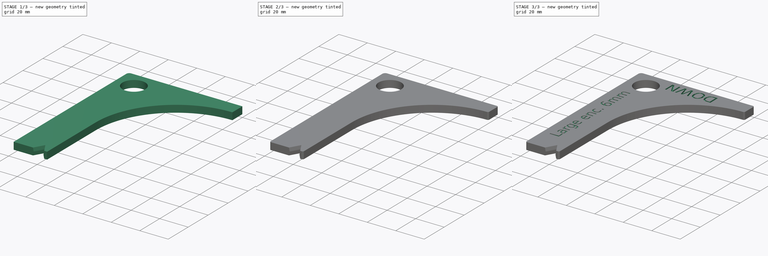
[diagram: build sequence overview — one tinted view per stage of 3, left to right]
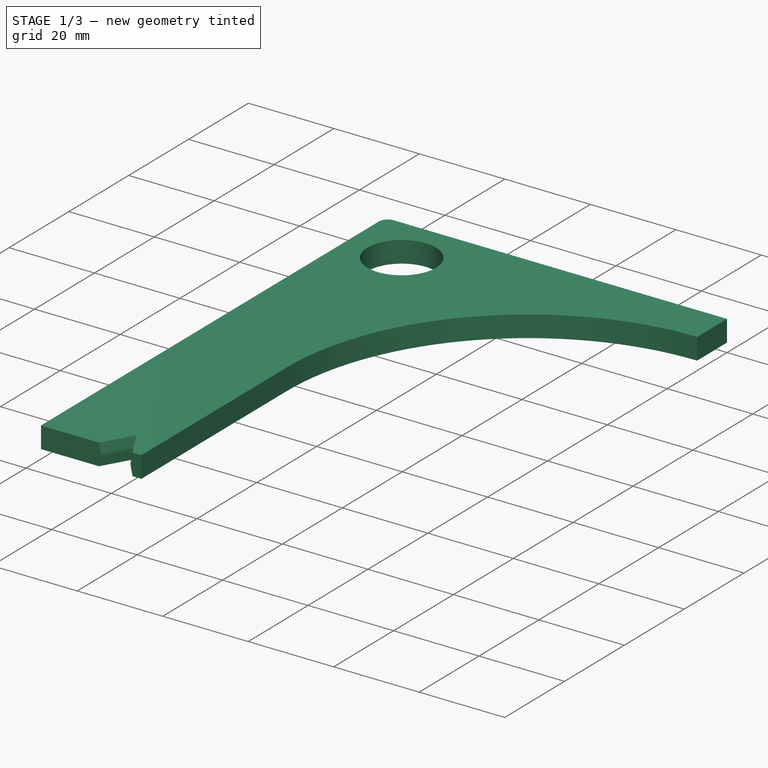
[diagram: stage 1 of 3 — iso view after this stage's code; geometry added in this stage tinted green]
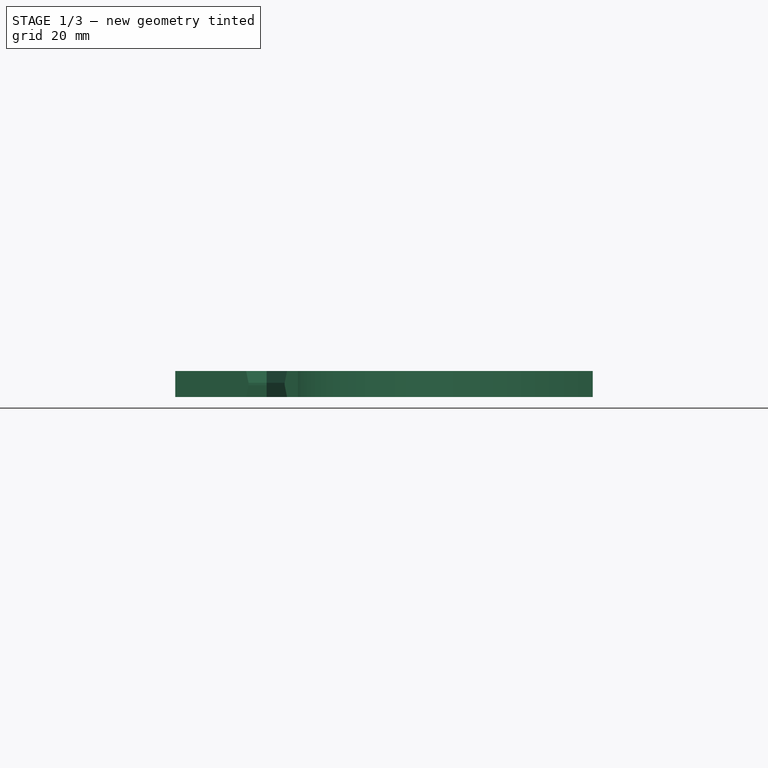
[diagram: stage 1 of 3 — front view after this stage's code; geometry added in this stage tinted green]
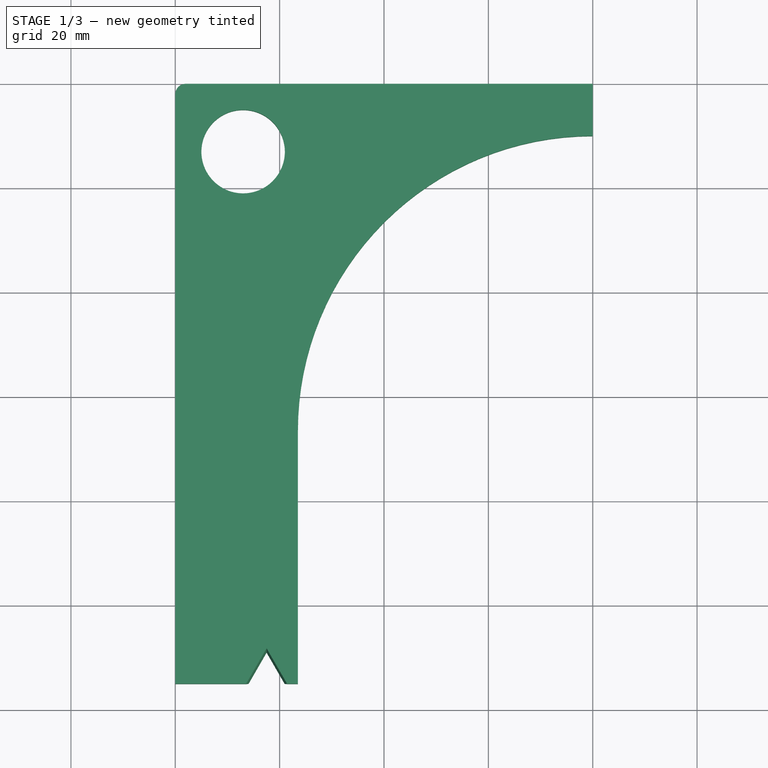
[diagram: stage 1 of 3 — top view after this stage's code; geometry added in this stage tinted green]
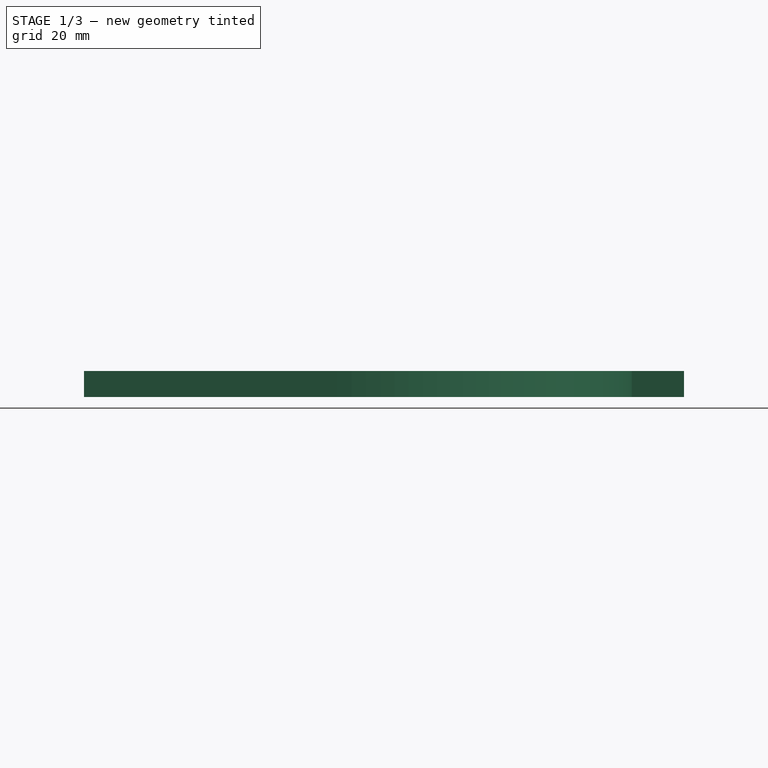
[diagram: stage 1 of 3 — right view after this stage's code; geometry added in this stage tinted green]
FCSTD DOCUMENT  (FreeCAD 0.20R29410 (Git))
Label: Large enclosure, 6mm DIN holes for 325mm slotted DIN rail
License: All rights reserved
LicenseURL: http://en.wikipedia.org/wiki/All_rights_reserved
objects: Part::Part2DObjectPython×2, PartDesign::Pocket×2, Sketcher::SketchObject×1, PartDesign::Pad×1, PartDesign::Chamfer×1, PartDesign::Fillet×1, PartDesign::Body×1
note: 14 computed .brp shape members not serialized (recipe doc carries the construction recipe); baked Part::Feature solids carry a one-line shape summary decoded from their .brp

FEATURE [Sketcher::SketchObject] Sketch
  FullyConstrained = true
  MapMode = 5
  Support = -> [XY_Plane]
  sketch-geometry (11):
    g0: LineSegment StartX=2 StartY=0 StartZ=0 EndX=80 EndY=0 EndZ=0
    g1: LineSegment StartX=2.7e-15 StartY=-115 StartZ=0 EndX=2.7e-15 EndY=-2 EndZ=0
    g2: ArcOfCircle CenterX=2 CenterY=-2 CenterZ=0 NormalX=0 NormalY=0 NormalZ=1 AngleXU=0 Radius=2 StartAngle=1.5708 EndAngle=3.14159
    g3: LineSegment StartX=2.7e-15 StartY=-115 StartZ=0 EndX=14.0359 EndY=-115 EndZ=0
    g4: LineSegment StartX=14.0359 StartY=-115 StartZ=0 EndX=17.5 EndY=-109 EndZ=0
    g5: LineSegment StartX=17.5 StartY=-109 StartZ=0 EndX=20.9641 EndY=-115 EndZ=0
    g6: LineSegment StartX=20.9641 StartY=-115 StartZ=0 EndX=23.5 EndY=-115 EndZ=0
    g7: LineSegment StartX=80 StartY=0 StartZ=0 EndX=80 EndY=-10 EndZ=0
    g8: LineSegment StartX=23.5 StartY=-115 StartZ=0 EndX=23.5 EndY=-66.5 EndZ=0
    g9: ArcOfCircle CenterX=80 CenterY=-66.5 CenterZ=0 NormalX=0 NormalY=0 NormalZ=1 AngleXU=0 Radius=56.5 StartAngle=1.5708 EndAngle=3.14159
    g10: Circle CenterX=13 CenterY=-13 CenterZ=0 NormalX=0 NormalY=0 NormalZ=1 AngleXU=0 Radius=8
  constraints (33):
    c: Horizontal(g0)
    c: Vertical(g1)
    c: Tangent(g0,g2) = 1.5708
    c: Tangent(g1,g2) = 1.5708
    c: Horizontal(g0,g-1)
    c: Vertical(g-1,g1)
    c: DistanceY(g2,g0) = 2
    c: Coincident(g1,g3)
    c: Horizontal(g3)
    c: Coincident(g3,g4)
    c: Coincident(g4,g5)
    c: Coincident(g5,g6)
    c: Horizontal(g6)
    c: DistanceY(g3,g4) = 6
    c: Horizontal(g3,g5)
    c: Angle(g4,g5) = 1.0472
    c: Equal(g4,g5)
    c: DistanceY(g4,g0) = 109
    c: DistanceX(g1,g4) = 17.5
    c: DistanceX(g1,g0) = 80
    c: Coincident(g7,g0)
    c: Distance(g7) = 10
    c: DistanceX(g4,g6) = 6
    c: Vertical(g7)
    c: Coincident(g8,g6)
    c: Vertical(g8)
    c: Coincident(g9,g8)
    c: Coincident(g9,g7)
    c: Vertical(g9,g7)
    c: Horizontal(g8,g9)
    c: Radius(g10) = 8
    c: DistanceX(g-1,g10) = 13
    c: DistanceY(g10,g-1) = 13
FEATURE [PartDesign::Pad] Pad
  Direction = (0,0,1)
  Length = 5
  Length2 = 100
  Profile = -> Sketch
  Type = 0
FEATURE [Part::Part2DObjectPython] ShapeString  label="Large enc. 6mm"  # Draft 2D object (typed FeaturePython)
  FontFile = <path>
  Placement = pos=(11.5,-99,5) rot=(0,0,1;1.5708rad)
  Size = 7
  String = Large enc. 6mm
  Tracking = 0
FEATURE [PartDesign::Chamfer] Chamfer
  Angle = 80
  Base = -> Pad [Edge28,Edge25,Edge24,Edge27]
  BaseFeature = -> Pad
  ChamferType = 2
  FlipDirection = true
  Size = 0.4
  Size2 = 1
  SupportTransform = false
  UseAllEdges = false
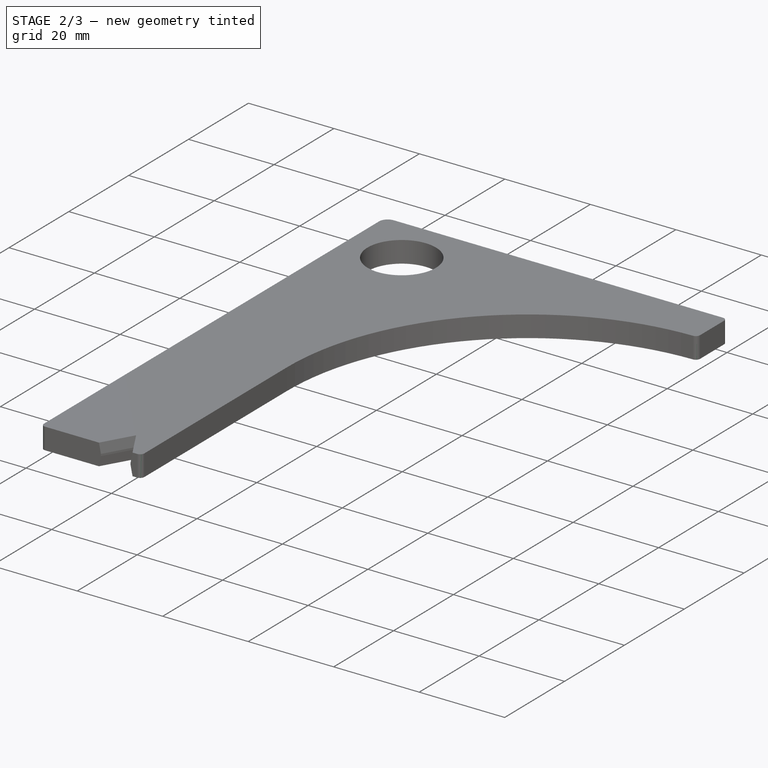
[diagram: stage 2 of 3 — iso view after this stage's code; geometry added in this stage tinted green]
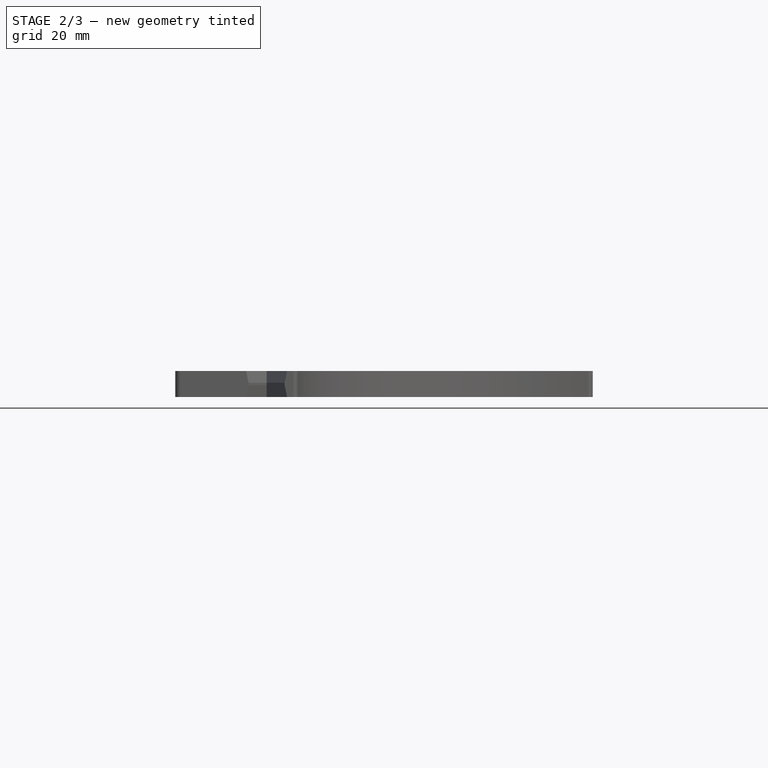
[diagram: stage 2 of 3 — front view after this stage's code; geometry added in this stage tinted green]
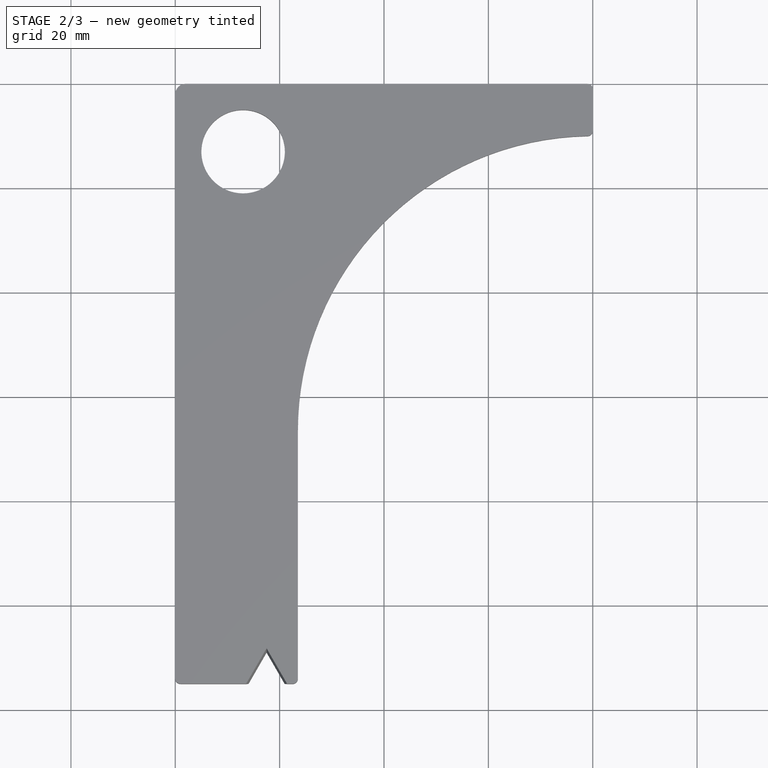
[diagram: stage 2 of 3 — top view after this stage's code; geometry added in this stage tinted green]
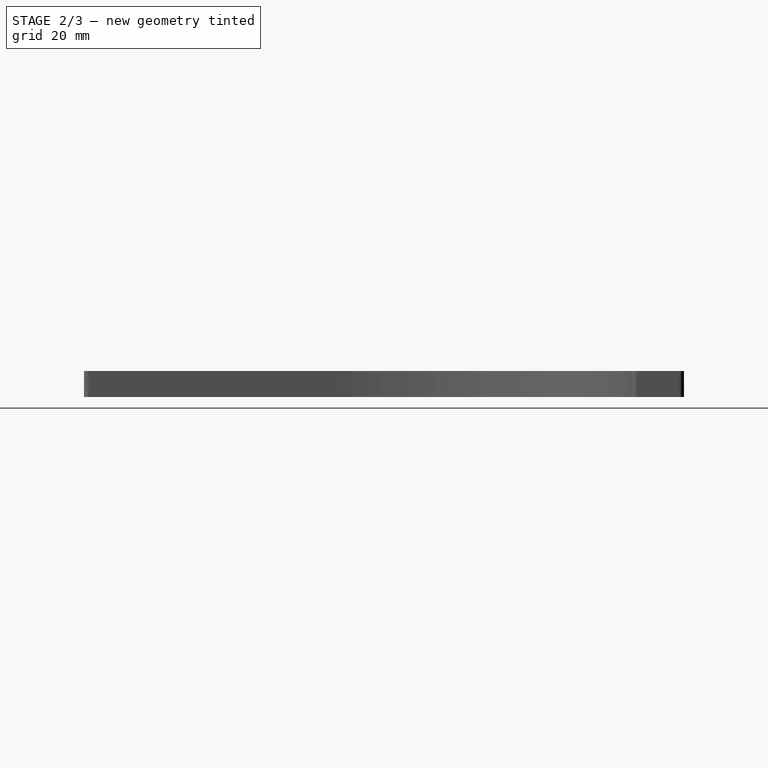
[diagram: stage 2 of 3 — right view after this stage's code; geometry added in this stage tinted green]
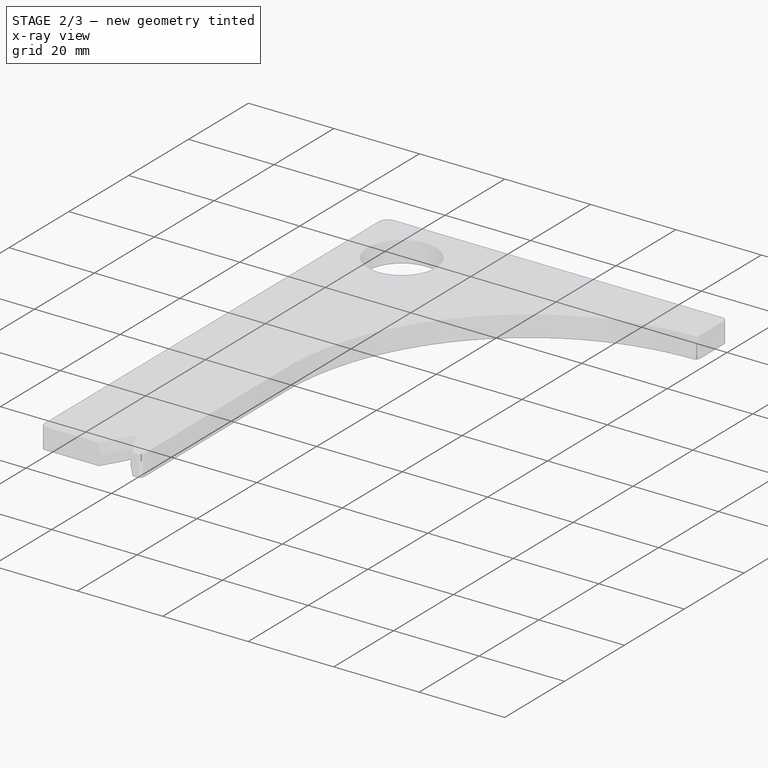
[diagram: stage 2 of 3 — x-ray composite at the iso view; earlier geometry ghosted, this stage's added geometry solid]
FEATURE [Part::Part2DObjectPython] ShapeString001  label="Down"  # Draft 2D object (typed FeaturePython)
  FontFile = <path>
  Placement = pos=(57.5,-3,5) rot=(0,0,1;3.14159rad)
  Size = 8
  String = DOWN
  Tracking = 0
FEATURE [PartDesign::Fillet] Fillet
  Base = -> Chamfer [Edge38,Edge6,Edge39,Edge40]
  BaseFeature = -> Chamfer
  Radius = 1
  SupportTransform = false
  UseAllEdges = false
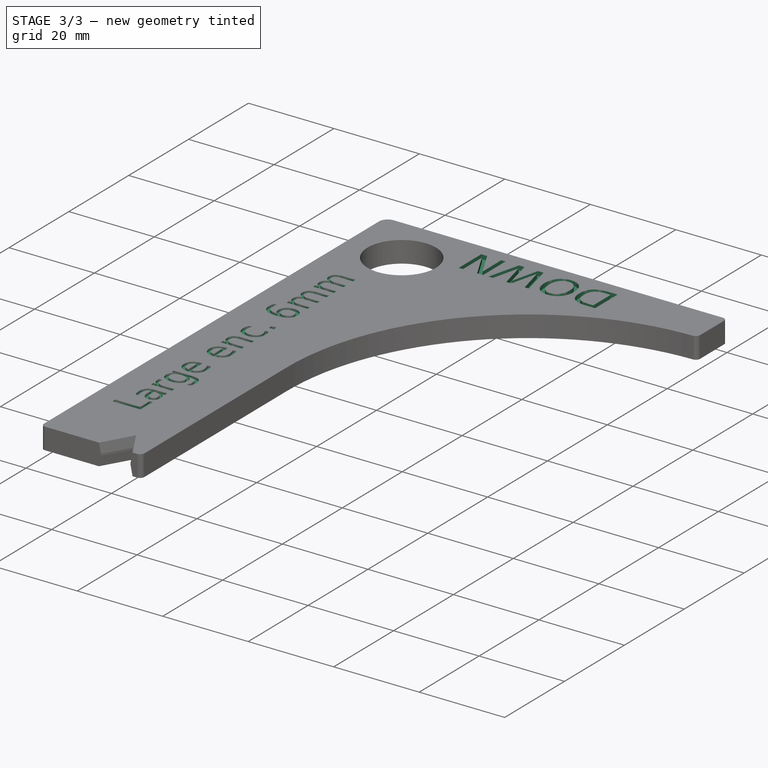
[diagram: stage 3 of 3 — iso view after this stage's code; geometry added in this stage tinted green]
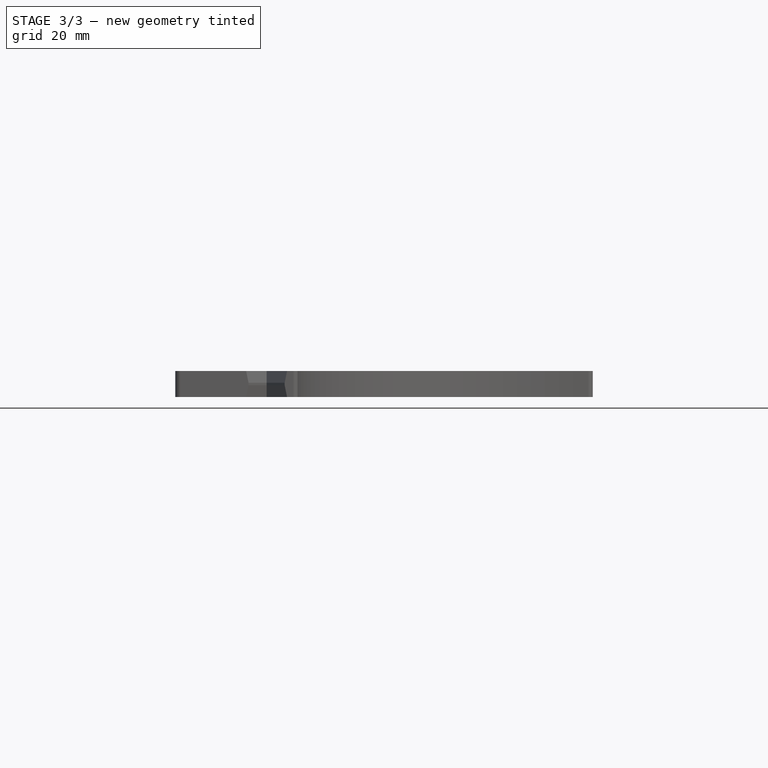
[diagram: stage 3 of 3 — front view after this stage's code; geometry added in this stage tinted green]
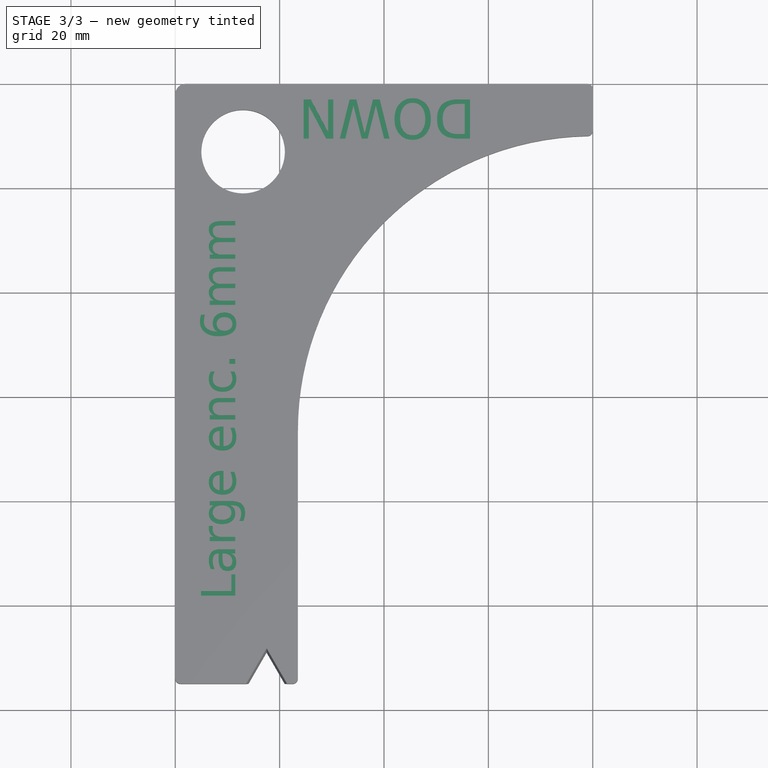
[diagram: stage 3 of 3 — top view after this stage's code; geometry added in this stage tinted green]
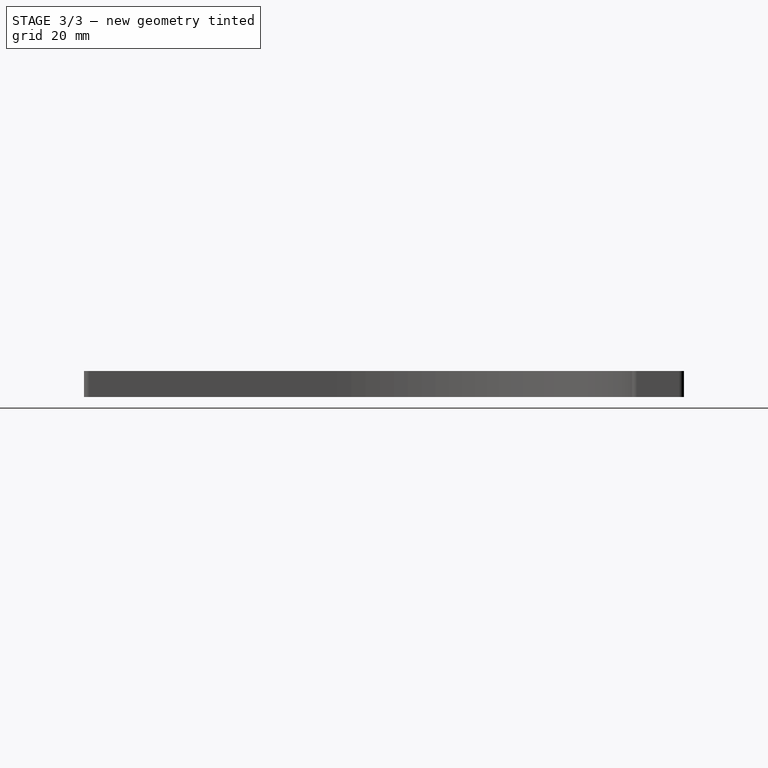
[diagram: stage 3 of 3 — right view after this stage's code; geometry added in this stage tinted green]
FEATURE [PartDesign::Pocket] Pocket
  BaseFeature = -> Fillet
  Direction = (0,0,-1)
  Length = 1
  Length2 = 100
  Profile = -> ShapeString001
  Type = 0
FEATURE [PartDesign::Pocket] Pocket001
  BaseFeature = -> Pocket
  Direction = (0,0,-1)
  Length = 1
  Length2 = 100
  Midplane = true
  Profile = -> ShapeString
  Type = 0
FEATURE [PartDesign::Body] Body
  Group = -> [Sketch,Pad,Chamfer,Fillet,ShapeString,ShapeString001,Pocket,Pocket001]
  Origin = -> Origin
  Tip = -> Pocket001
note: 2 file-system paths scrubbed to <path> (originals preserved in the JSON sidecar)
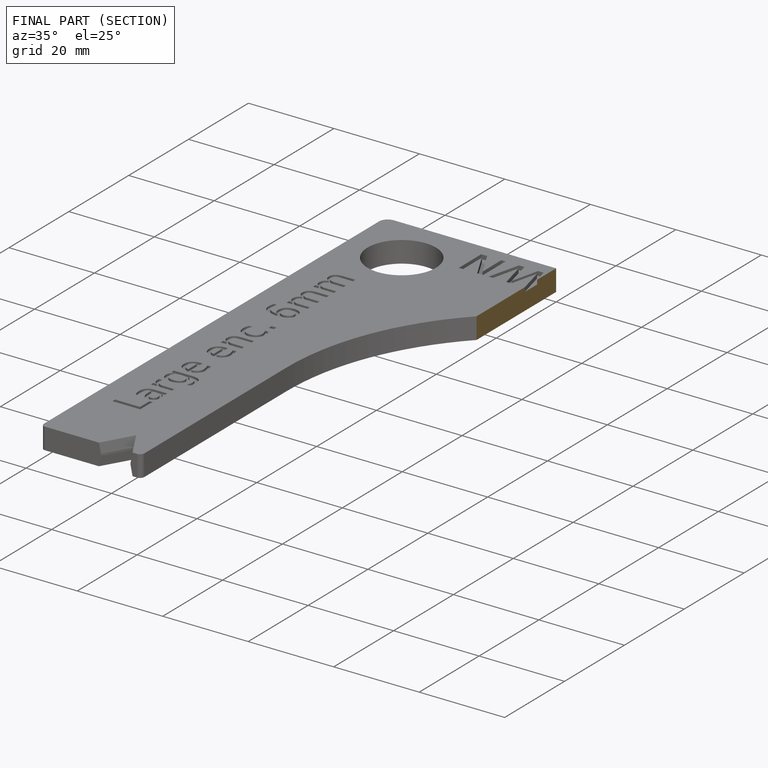
[diagram: finished part — half-section view (interior)]
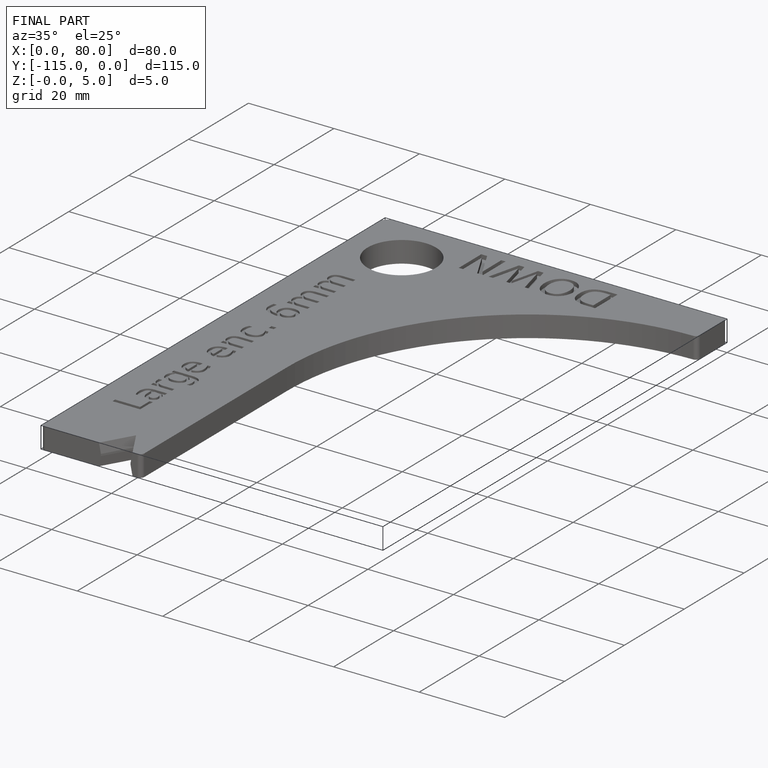
[diagram: finished part — iso view with bounding-box wireframe]
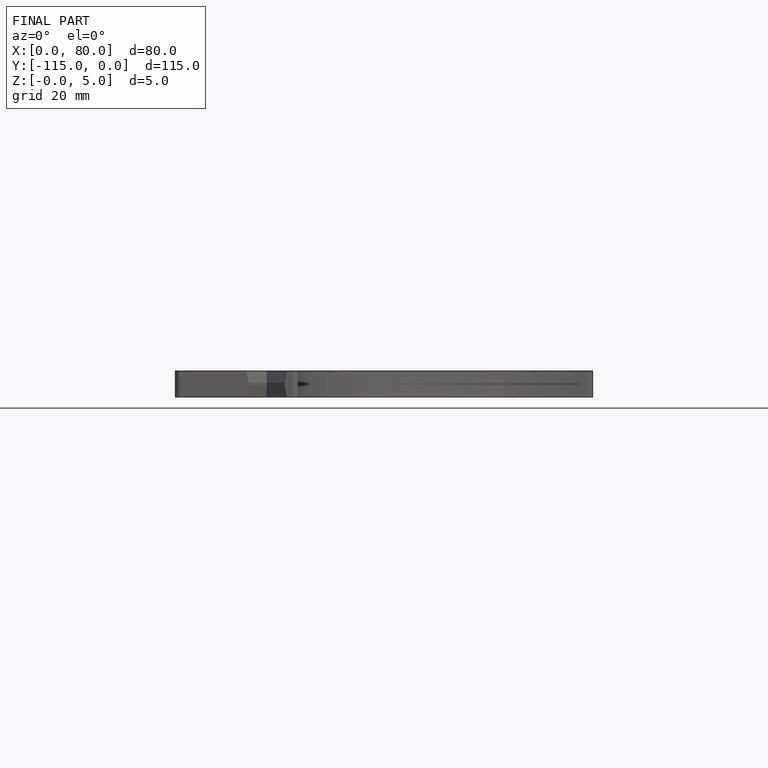
[diagram: finished part — front view with bounding-box wireframe]
